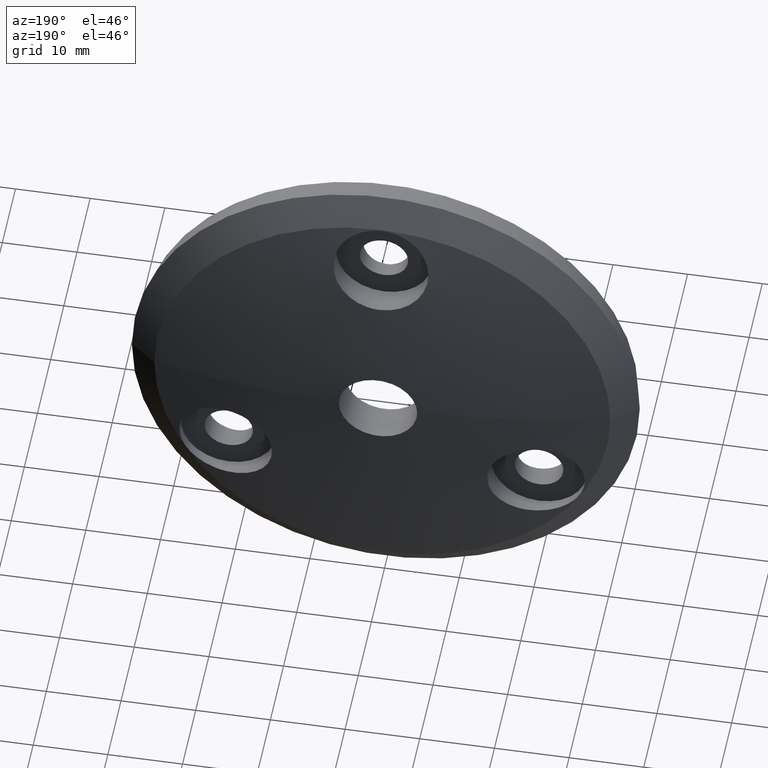
[diagram: clean part render]
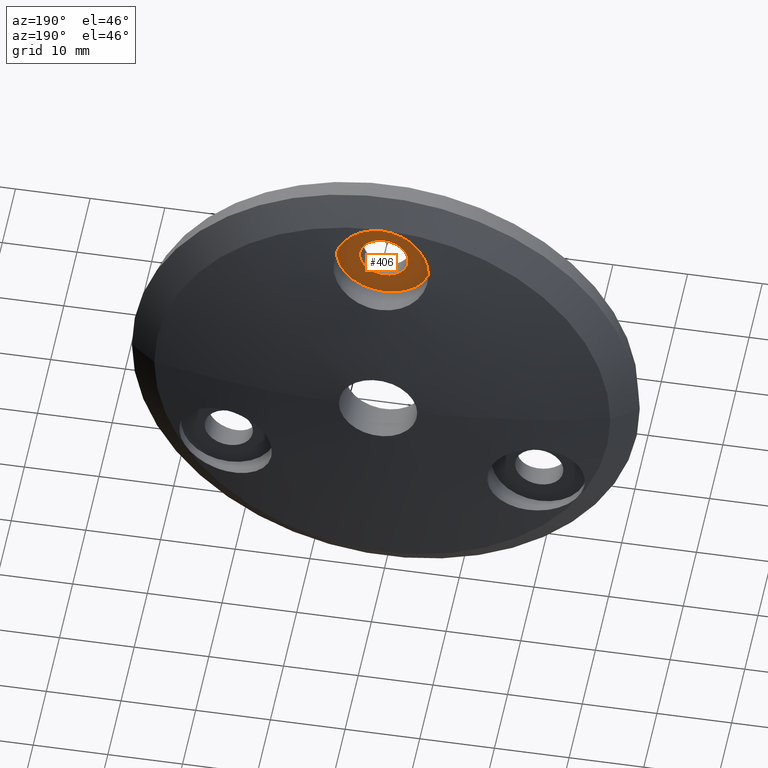
[diagram: same view with one face highlighted and labeled with its STEP entity id]
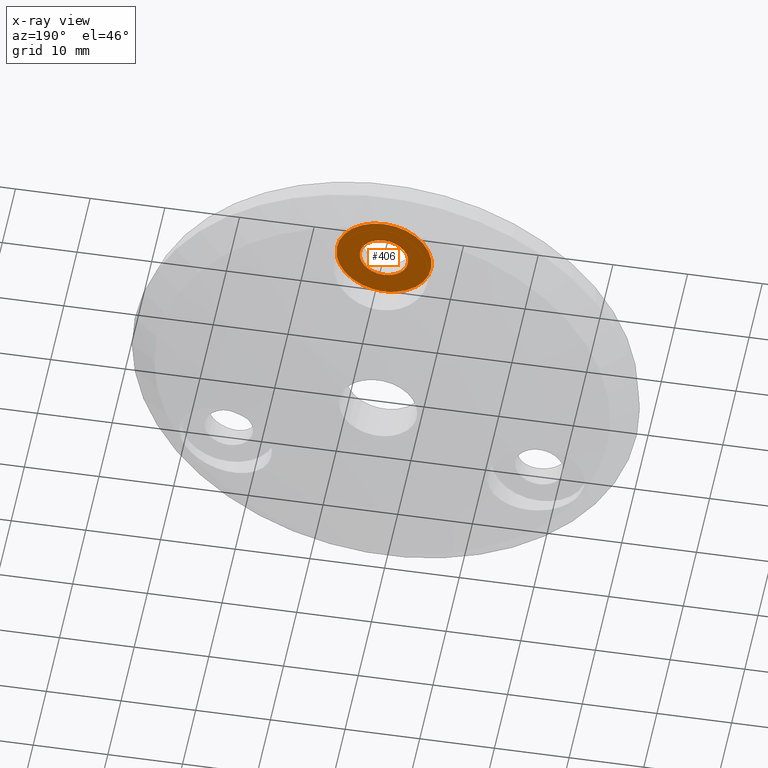
[diagram: x-ray of the same camera — body ghosted, the highlighted face saturated]
A machine part, auxiliary view. The second image highlights one B-rep face of the part: STEP entity #406.
The next image is the same camera in x-ray: the body ghosted, the highlighted face saturated — about 0% of this face is hidden behind the body in this view.
In plain terms, the highlighted planar face has unit normal (0, -1, 0).
Its self-contained STEP definition (entity closure, byte-faithful):
#172 = CIRCLE ( 'NONE', #10348, 3.249999999999999556 ) ;
#406 = ADVANCED_FACE ( 'NONE', ( #10146, #823 ), #5766, .F. ) ;
#657 = CARTESIAN_POINT ( 'NONE',  ( 3.980102097228895766E-16, 0.4405351615402405274, 20.75000000000000000 ) ) ;
#801 = DIRECTION ( 'NONE',  ( 0.000000000000000000, 0.000000000000000000, 1.000000000000000000 ) ) ;
#823 = FACE_OUTER_BOUND ( 'NONE', #11985, .T. ) ;
#1457 = DIRECTION ( 'NONE',  ( -0.000000000000000000, 1.000000000000000000, -0.000000000000000000 ) ) ;
#1595 = DIRECTION ( 'NONE',  ( 0.000000000000000000, 0.000000000000000000, 1.000000000000000000 ) ) ;
#1734 = DIRECTION ( 'NONE',  ( 0.000000000000000000, -0.000000000000000000, -1.000000000000000000 ) ) ;
#1820 = EDGE_CURVE ( 'NONE', #6318, #3653, #3799, .T. ) ;
#1836 = ORIENTED_EDGE ( 'NONE', *, *, #6448, .F. ) ;
#2068 = EDGE_CURVE ( 'NONE', #3653, #6318, #3922, .T. ) ;
#3534 = CARTESIAN_POINT ( 'NONE',  ( 0.000000000000000000, 0.4405351615402405274, 27.25000000000000000 ) ) ;
#3653 = VERTEX_POINT ( 'NONE', #7639 ) ;
#3799 = CIRCLE ( 'NONE', #10888, 6.374999999999999112 ) ;
#3922 = CIRCLE ( 'NONE', #8632, 6.374999999999999112 ) ;
#4484 = CARTESIAN_POINT ( 'NONE',  ( 0.000000000000000000, 0.4405351615402407495, 30.37500000000000000 ) ) ;
#4552 = AXIS2_PLACEMENT_3D ( 'NONE', #5640, #6602, #1734 ) ;
#4616 = EDGE_CURVE ( 'NONE', #10868, #12621, #10640, .T. ) ;
#4708 = CARTESIAN_POINT ( 'NONE',  ( 0.000000000000000000, 0.4405351615402405274, 24.00000000000000000 ) ) ;
#4819 = ORIENTED_EDGE ( 'NONE', *, *, #2068, .T. ) ;
#5640 = CARTESIAN_POINT ( 'NONE',  ( 3.249999999999999112, 0.4405351615402406384, 24.00000000000000000 ) ) ;
#5761 = CARTESIAN_POINT ( 'NONE',  ( 0.000000000000000000, 0.4405351615402407495, 24.00000000000000000 ) ) ;
#5766 = PLANE ( 'NONE',  #4552 ) ;
#6318 = VERTEX_POINT ( 'NONE', #4484 ) ;
#6448 = EDGE_CURVE ( 'NONE', #12621, #10868, #172, .T. ) ;
#6500 = DIRECTION ( 'NONE',  ( -0.000000000000000000, 1.000000000000000000, -0.000000000000000000 ) ) ;
#6602 = DIRECTION ( 'NONE',  ( 0.000000000000000000, -1.000000000000000000, 0.000000000000000000 ) ) ;
#6766 = DIRECTION ( 'NONE',  ( -0.000000000000000000, 1.000000000000000000, -0.000000000000000000 ) ) ;
#6845 = ORIENTED_EDGE ( 'NONE', *, *, #4616, .F. ) ;
#7315 = CARTESIAN_POINT ( 'NONE',  ( 0.000000000000000000, 0.4405351615402407495, 24.00000000000000000 ) ) ;
#7639 = CARTESIAN_POINT ( 'NONE',  ( 7.807123344564377528E-16, 0.4405351615402407495, 17.62500000000000000 ) ) ;
#8627 = ORIENTED_EDGE ( 'NONE', *, *, #1820, .T. ) ;
#8632 = AXIS2_PLACEMENT_3D ( 'NONE', #7315, #1457, #11284 ) ;
#9395 = EDGE_LOOP ( 'NONE', ( #6845, #1836 ) ) ;
#9579 = DIRECTION ( 'NONE',  ( 0.000000000000000000, 0.000000000000000000, 1.000000000000000000 ) ) ;
#9671 = DIRECTION ( 'NONE',  ( -0.000000000000000000, 1.000000000000000000, -0.000000000000000000 ) ) ;
#10146 = FACE_BOUND ( 'NONE', #9395, .T. ) ;
#10348 = AXIS2_PLACEMENT_3D ( 'NONE', #10688, #9671, #9579 ) ;
#10640 = CIRCLE ( 'NONE', #12180, 3.249999999999999556 ) ;
#10688 = CARTESIAN_POINT ( 'NONE',  ( 0.000000000000000000, 0.4405351615402405274, 24.00000000000000000 ) ) ;
#10868 = VERTEX_POINT ( 'NONE', #3534 ) ;
#10888 = AXIS2_PLACEMENT_3D ( 'NONE', #5761, #6766, #801 ) ;
#11284 = DIRECTION ( 'NONE',  ( 0.000000000000000000, 0.000000000000000000, 1.000000000000000000 ) ) ;
#11985 = EDGE_LOOP ( 'NONE', ( #8627, #4819 ) ) ;
#12180 = AXIS2_PLACEMENT_3D ( 'NONE', #4708, #6500, #1595 ) ;
#12621 = VERTEX_POINT ( 'NONE', #657 ) ;